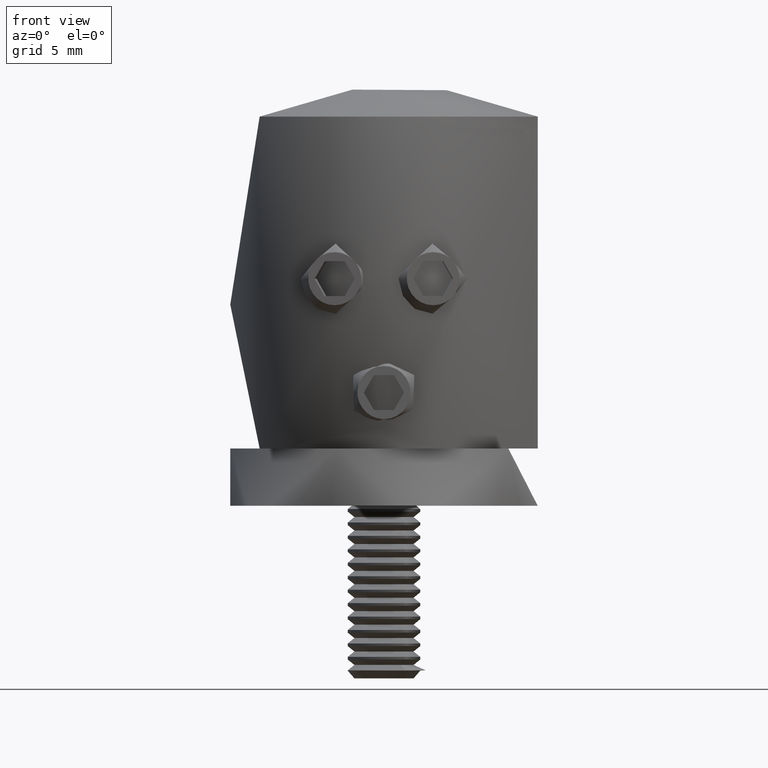
[diagram: clean part render]
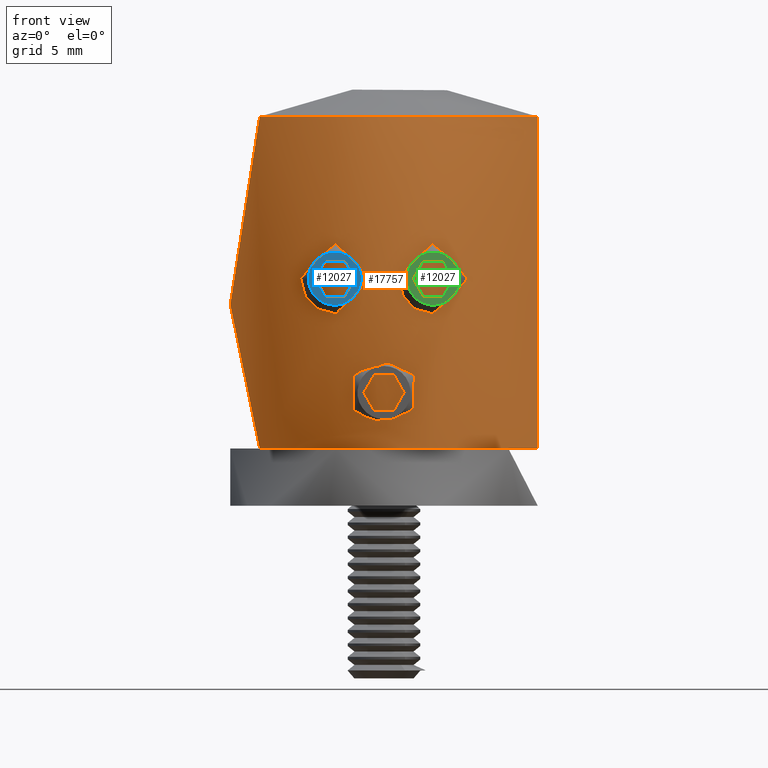
[diagram: same view with three faces highlighted in distinct colors, each labeled with its STEP entity id]
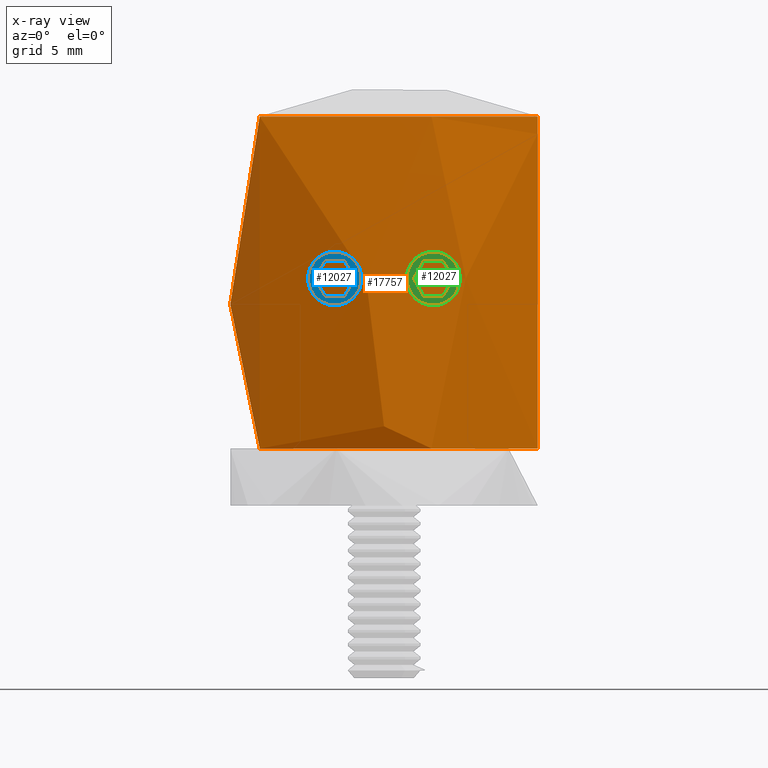
[diagram: x-ray of the same camera — body ghosted, the three highlighted faces saturated]
A machine part, front view with three faces highlighted in distinct colors.
The next image is the same camera in x-ray (body ghosted, the three faces saturated) — at least one of them is partly hidden behind the body in this view.
Their STEP definitions:

[orange] entity #17757 — the highlighted cylindrical surface (bore or boss wall) has radius 11 mm, axis along (0, 0, 1).
#6 = CARTESIAN_POINT ( 'NONE',  ( 10.56075521959791500, -3.096678220883586800, 21.67043277127626800 ) ) ;
#93 = CARTESIAN_POINT ( 'NONE',  ( -2.753301926233565400, -10.64985110238629100, 14.25785471381139800 ) ) ;
#97 = CARTESIAN_POINT ( 'NONE',  ( 9.884558394909735300, 4.832955114603749700, 20.14278198770373900 ) ) ;
#120 = ORIENTED_EDGE ( 'NONE', *, *, #16695, .T. ) ;
#170 = CARTESIAN_POINT ( 'NONE',  ( -10.97324043956128200, -0.7936138331961997100, 22.45163438274045800 ) ) ;
#194 = FACE_OUTER_BOUND ( 'NONE', #21039, .T. ) ;
#199 = CARTESIAN_POINT ( 'NONE',  ( 5.673721322420179900, -9.423846685696586800, 13.02549293670282900 ) ) ;
#467 = CARTESIAN_POINT ( 'NONE',  ( 10.88669551587767400, 1.625843207734908100, 10.50636876088165500 ) ) ;
#770 = CARTESIAN_POINT ( 'NONE',  ( -2.087678545343330000, -10.80007399471471700, 2.657151107508259000 ) ) ;
#951 = CARTESIAN_POINT ( 'NONE',  ( -2.177980241879993600, -10.78262365602483500, 5.213167996627087900 ) ) ;
#1031 = CARTESIAN_POINT ( 'NONE',  ( -2.382999229848468600, -10.73896813810681100, 3.220662270662221900 ) ) ;
#1121 = CARTESIAN_POINT ( 'NONE',  ( 2.256039582255863900, -10.76635616935171300, 2.926755654170211800 ) ) ;
#1183 = FACE_BOUND ( 'NONE', #15120, .T. ) ;
#1199 = CARTESIAN_POINT ( 'NONE',  ( 2.754512253586975900, -10.64953812354503700, 10.04167943430237000 ) ) ;
#1216 = CARTESIAN_POINT ( 'NONE',  ( 2.383584876163826700, -10.73884196754026400, 4.778017131766939800 ) ) ;
#1285 = CARTESIAN_POINT ( 'NONE',  ( 1.360531549438918500, -10.91558239197754300, 12.75118833010672100 ) ) ;
#1302 = CARTESIAN_POINT ( 'NONE',  ( 0.9623838866416614100, -10.95781991341035100, 1.769162574123964900 ) ) ;
#1371 = CARTESIAN_POINT ( 'NONE',  ( 1.282156153220556500, -10.92502062360793300, 12.00317585518097200 ) ) ;
#1398 = CARTESIAN_POINT ( 'NONE',  ( -4.742177440321203400, -9.926185626313431600, 10.19436772286568200 ) ) ;
#1478 = CARTESIAN_POINT ( 'NONE',  ( 3.187970294722303000, -10.52790793082691000, 9.921390849775974600 ) ) ;
#1483 = CARTESIAN_POINT ( 'NONE',  ( -9.153253516029341300, 6.100651666123667400, 16.58324285485192500 ) ) ;
#1495 = CARTESIAN_POINT ( 'NONE',  ( -2.020667218593132300E-015, -10.99999999999999800, 1.584844900694847100 ) ) ;
#1508 = CARTESIAN_POINT ( 'NONE',  ( -1.527190029316933400, -10.89364210904039400, 11.12788211107018600 ) ) ;
#1537 = DIRECTION ( 'NONE',  ( 1.000000000000000000, 0.0000000000000000000, 0.0000000000000000000 ) ) ;
#1577 = CARTESIAN_POINT ( 'NONE',  ( 3.631849595200657500, -10.38314347959426000, 9.886724001491202800 ) ) ;
#1599 = CARTESIAN_POINT ( 'NONE',  ( -3.633098961250465400, -10.38270638792028700, 9.886747519535207500 ) ) ;
#1687 = CARTESIAN_POINT ( 'NONE',  ( -2.347266312254069100, -10.74664323681386200, 10.24585284714411800 ) ) ;
#1695 = CARTESIAN_POINT ( 'NONE',  ( 11.00000000000000000, 0.0000000000000000000, 10.29999999999999900 ) ) ;
#1760 = CARTESIAN_POINT ( 'NONE',  ( -10.99999999999999800, 0.4119544153468474600, 10.29999999999999700 ) ) ;
#1785 = CARTESIAN_POINT ( 'NONE',  ( 9.823416292433384100, -4.951332716768896500, 12.83170122485886600 ) ) ;
#1859 = CARTESIAN_POINT ( 'NONE',  ( 5.847544478752919200, -9.316985755884912700, 12.44954029454594900 ) ) ;
#1878 = CARTESIAN_POINT ( 'NONE',  ( -4.210245126580717900, -10.16352846597259300, 14.33269670826544000 ) ) ;
#1882 = CARTESIAN_POINT ( 'NONE',  ( 9.655843362379474800, 5.275096090437347000, 19.48856493924066800 ) ) ;
#1941 = CARTESIAN_POINT ( 'NONE',  ( -9.884558394909735300, -4.832955114603747000, 20.14278198770373500 ) ) ;
#1966 = CARTESIAN_POINT ( 'NONE',  ( 10.65712405073123900, -2.750588877777293100, 21.85910216543438600 ) ) ;
#2056 = CARTESIAN_POINT ( 'NONE',  ( 10.56848592839725500, 3.070138311554854400, 21.68581601544172000 ) ) ;
#2061 = VERTEX_POINT ( 'NONE', #22880 ) ;
#2120 = CARTESIAN_POINT ( 'NONE',  ( -10.70011745089923100, -2.557856534737484600, 10.85862283480468400 ) ) ;
#2143 = CARTESIAN_POINT ( 'NONE',  ( -5.384240290188936100, -9.592630122477549600, 13.53707885892274700 ) ) ;
#2147 = CARTESIAN_POINT ( 'NONE',  ( 10.50807610336932500, 3.257306727324840600, 11.23869160819104400 ) ) ;
#2230 = CARTESIAN_POINT ( 'NONE',  ( -3.336884758183825900, -10.48279922661845600, 14.40472746973071800 ) ) ;
#2234 = CARTESIAN_POINT ( 'NONE',  ( 9.404246883826667500, -5.706848822141821200, 18.56371187619916800 ) ) ;
#2260 = DIRECTION ( 'NONE',  ( 1.000000000000000000, 0.0000000000000000000, 0.0000000000000000000 ) ) ;
#2300 = CARTESIAN_POINT ( 'NONE',  ( -9.154733802318572700, -6.098430320488778200, 16.82884321834455600 ) ) ;
#2688 = CARTESIAN_POINT ( 'NONE',  ( 11.00000000000000000, 0.4119544153468421300, 10.30000000000000100 ) ) ;
#2811 = CARTESIAN_POINT ( 'NONE',  ( -1.397269774137160900, -10.91089534265097100, 1.993051909358202400 ) ) ;
#2838 = CARTESIAN_POINT ( 'NONE',  ( 5.467084470818230500, -9.545207561333493000, 13.41310784844748800 ) ) ;
#2913 = CARTESIAN_POINT ( 'NONE',  ( -1.892899697423030100, -10.83654340792634900, 2.404725380980155000 ) ) ;
#3004 = CARTESIAN_POINT ( 'NONE',  ( -2.179285043678576000, -10.78236625296386300, 2.788823219965029600 ) ) ;
#3181 = CARTESIAN_POINT ( 'NONE',  ( 1.543890676010267700, -10.89363039259128000, 2.069276441871760900 ) ) ;
#3335 = CARTESIAN_POINT ( 'NONE',  ( 1.282485554755368600, -10.92498196013814200, 12.30271078121425500 ) ) ;
#3407 = CARTESIAN_POINT ( 'NONE',  ( 5.193391443391214500, -9.696838934194527600, 13.74888644280039800 ) ) ;
#3417 = VERTEX_POINT ( 'NONE', #22695 ) ;
#3427 = CARTESIAN_POINT ( 'NONE',  ( 3.489927570238195600, -10.43286345160808000, 14.41621972085257400 ) ) ;
#3444 = CARTESIAN_POINT ( 'NONE',  ( 0.3311095053121640400, -10.99992139316571600, 6.414830767918807900 ) ) ;
#3513 = EDGE_CURVE ( 'NONE', #4068, #4068, #18401, .T. ) ;
#3523 = CARTESIAN_POINT ( 'NONE',  ( 1.467256935775968400, -10.90170432017018400, 13.03433002751525100 ) ) ;
#3545 = CARTESIAN_POINT ( 'NONE',  ( -5.293055447504852600, -9.643499864571598600, 10.65133670993443200 ) ) ;
#3611 = CARTESIAN_POINT ( 'NONE',  ( 1.988647202245952700, -10.81874679919071300, 13.77572548807148500 ) ) ;
#3630 = CARTESIAN_POINT ( 'NONE',  ( -4.349161509504773100, -10.10474981273242400, 10.01138066265118100 ) ) ;
#3692 = CARTESIAN_POINT ( 'NONE',  ( 5.672619827117395100, -9.424509764279230600, 11.27185194951392000 ) ) ;
#3718 = CARTESIAN_POINT ( 'NONE',  ( -5.773158407178154800, -9.363325565606976000, 11.55117011655923100 ) ) ;
#3720 = CARTESIAN_POINT ( 'NONE',  ( 10.97695157601235900, -0.8154917404544900200, 10.34128971045530300 ) ) ;
#3796 = CARTESIAN_POINT ( 'NONE',  ( -9.541437754094056700, 5.476577152540516000, 19.11591475201606400 ) ) ;
#3821 = CARTESIAN_POINT ( 'NONE',  ( -2.614415102660436800, -10.68578014226144800, 10.09553121515492600 ) ) ;
#3840 = EDGE_LOOP ( 'NONE', ( #24095 ) ) ;
#3885 = CARTESIAN_POINT ( 'NONE',  ( -10.05928916644563000, 4.453430819430038500, 12.22689457929945800 ) ) ;
#3911 = CARTESIAN_POINT ( 'NONE',  ( 10.99999999999999600, 0.0000000000000000000, 23.74878637916747000 ) ) ;
#3973 = CARTESIAN_POINT ( 'NONE',  ( -9.818003290387908400, 4.962056561256334300, 19.95341231550813500 ) ) ;
#3989 = EDGE_CURVE ( 'NONE', #25035, #25035, #19979, .T. ) ;
#3993 = CARTESIAN_POINT ( 'NONE',  ( 9.287385638928912000, -5.895229317790466400, 14.78182133336428600 ) ) ;
#4054 = CARTESIAN_POINT ( 'NONE',  ( -10.65567692228154900, -2.736668129976454800, 10.94471346896226500 ) ) ;
#4068 = VERTEX_POINT ( 'NONE', #14237 ) ;
#4080 = CARTESIAN_POINT ( 'NONE',  ( -4.067891627060605600, -10.22018873164728500, 14.36315321034518900 ) ) ;
#4084 = CARTESIAN_POINT ( 'NONE',  ( 9.994595874194324400, -4.596398108278324700, 20.41514637220333500 ) ) ;
#4155 = CARTESIAN_POINT ( 'NONE',  ( -10.90835395832875500, 1.431035666601238300, 22.33324243480165100 ) ) ;
#4180 = CARTESIAN_POINT ( 'NONE',  ( 9.548936329887283100, 5.463500988949929700, 19.14152131049772300 ) ) ;
#4263 = CARTESIAN_POINT ( 'NONE',  ( 10.55980625606059000, 3.085983629272201600, 11.13443178477246100 ) ) ;
#4324 = CARTESIAN_POINT ( 'NONE',  ( -9.369915670549833200, -5.762779879413706400, 18.41008764505288700 ) ) ;
#4345 = CARTESIAN_POINT ( 'NONE',  ( 9.262708643723195600, 5.933349042232532800, 17.83071913368764400 ) ) ;
#4421 = CARTESIAN_POINT ( 'NONE',  ( -9.875328383823170200, -4.851642139667734300, 12.68169681171467300 ) ) ;
#4422 = ORIENTED_EDGE ( 'NONE', *, *, #20635, .F. ) ;
#4570 = B_SPLINE_CURVE_WITH_KNOTS ( 'NONE', 3,
 ( #20567, #24934, #3720, #12188, #18617, #12091, #12351, #25216, #5853, #14511, #26989, #27086, #1785, #22875, #17015, #21382, #3993, #18981, #8645, #12817, #8465, #23424, #16838, #6396, #27560, #21290, #2234, #14680, #8557, #10687, #25396, #4084, #12542, #14781, #6495, #6, #1966, #6128, #23517, #17115, #25580, #21016, #6216, #25666, #23322, #10787, #18895, #14596, #19259, #12719, #12898, #21115, #2056, #8366, #16933, #8278, #97, #1882, #4180, #25494, #23155, #12631, #4345, #10424, #23236, #16742, #10520, #19073, #25305, #6306, #14956, #21205, #10604, #27468, #14869, #2147, #4263, #19172, #23707, #6583, #467, #21567, #2688, #17580 ),
 .UNSPECIFIED., .T., .F.,
 ( 4, 2, 2, 2, 2, 2, 2, 2, 2, 2, 2, 2, 2, 2, 2, 2, 2, 2, 2, 2, 2, 2, 2, 2, 2, 2, 2, 2, 2, 2, 2, 2, 2, 2, 2, 2, 2, 2, 2, 2, 2, 4 ),
 ( 0.0000000000000000000, 0.001216736210685103400, 0.002433472421370206800, 0.003650208632055310300, 0.004866944842740413700, 0.005475312948082967600, 0.006083681053425521500, 0.007300417264110631800, 0.008517153474795743900, 0.009733889685480853400, 0.01034225779082340900, 0.01095062589616596600, 0.01155899400150852000, 0.01216736210685107800, 0.01338409831753618000, 0.01399246642287872400, 0.01460083452822126900, 0.01581757073890635600, 0.01703430694959143900, 0.01764267505493398100, 0.01825104316027652300, 0.01946777937096160300, 0.02007614747630414400, 0.02068451558164668600, 0.02129288368698922100, 0.02190125179233175900, 0.02311798800301683900, 0.02433472421370191600, 0.02555146042438699600, 0.02676819663507206900, 0.02737656474041461100, 0.02798493284575714900, 0.02920166905644223600, 0.03041840526712732300, 0.03163514147781240600, 0.03285187768849749000, 0.03406861389918258000, 0.03528535010986766400, 0.03589371821521020900, 0.03650208632055274700, 0.03771882253123783800, 0.03893555874192292800 ),
 .UNSPECIFIED. ) ;
#4729 = EDGE_CURVE ( 'NONE', #3417, #3417, #11919, .T. ) ;
#4752 = CARTESIAN_POINT ( 'NONE',  ( 5.847408648028886300, -9.317071004852323300, 11.84702165391507700 ) ) ;
#4842 = CARTESIAN_POINT ( 'NONE',  ( -1.661524859658452900, -10.87442308525437100, 2.181962713599229900 ) ) ;
#5015 = CARTESIAN_POINT ( 'NONE',  ( -2.495363705507605000, -10.71327480271960800, 4.317531738034352500 ) ) ;
#5211 = CARTESIAN_POINT ( 'NONE',  ( -1.115993498496286900, -10.94431255610769100, 1.830513048320795400 ) ) ;
#5374 = CARTESIAN_POINT ( 'NONE',  ( 0.3284569029660139900, -10.99628005263193000, 1.600367236529137300 ) ) ;
#5451 = CARTESIAN_POINT ( 'NONE',  ( 1.359436225987471000, -10.91571837052436900, 11.55256302524067100 ) ) ;
#5494 = CARTESIAN_POINT ( 'NONE',  ( 5.616999690705409200, -9.457996512411300600, 13.16245620615338500 ) ) ;
#5543 = CARTESIAN_POINT ( 'NONE',  ( 1.282320853987962500, -10.92500129187303800, 12.15294331819761300 ) ) ;
#5557 = CARTESIAN_POINT ( 'NONE',  ( 2.463499994663159100, -10.72059549541417000, 4.470953949805736900 ) ) ;
#5635 = CARTESIAN_POINT ( 'NONE',  ( 1.527845416882663600, -10.89354973566476500, 13.17330714616876000 ) ) ;
#5724 = CARTESIAN_POINT ( 'NONE',  ( 3.191726823003939300, -10.52676967959863500, 14.37926662916566300 ) ) ;
#5785 = DIRECTION ( 'NONE',  ( -0.0000000000000000000, -0.0000000000000000000, 1.000000000000000000 ) ) ;
#5824 = CARTESIAN_POINT ( 'NONE',  ( 1.877320584400411300, -10.83921029382861300, 13.67027739227517100 ) ) ;
#5853 = CARTESIAN_POINT ( 'NONE',  ( 10.23523940358924000, -4.040947010502999400, 11.81391594917569400 ) ) ;
#5917 = CARTESIAN_POINT ( 'NONE',  ( -9.647514933004703900, 5.290201444760914900, 19.46247388205959400 ) ) ;
#5937 = CARTESIAN_POINT ( 'NONE',  ( -3.928343048896012000, -10.27576737366478500, 9.906851510177565600 ) ) ;
#6002 = CARTESIAN_POINT ( 'NONE',  ( -9.882311817479486400, 4.833099761158372600, 12.67314814702374400 ) ) ;
#6022 = CARTESIAN_POINT ( 'NONE',  ( -5.464705314295977200, -9.546569846175390900, 13.41667514159514800 ) ) ;
#6098 = CARTESIAN_POINT ( 'NONE',  ( -10.97695157601235700, 0.8154917404544902400, 10.34128971045530000 ) ) ;
#6124 = CARTESIAN_POINT ( 'NONE',  ( -3.188991155148877400, -10.52759874864074300, 14.37878845237148800 ) ) ;
#6128 = CARTESIAN_POINT ( 'NONE',  ( 10.77884143829793800, -2.202631448935040000, 22.09190641235104000 ) ) ;
#6168 = CARTESIAN_POINT ( 'NONE',  ( 5.294704241020110800, -9.642578260186988700, 13.64662742966781300 ) ) ;
#6192 = CARTESIAN_POINT ( 'NONE',  ( -10.78664010805816500, -2.164383443384258600, 22.10666010265786600 ) ) ;
#6211 = CARTESIAN_POINT ( 'NONE',  ( -3.483483757282106000, -10.43502757870532300, 14.41598415133658400 ) ) ;
#6216 = CARTESIAN_POINT ( 'NONE',  ( 10.99905965626380100, -0.4319682143558784500, 22.49830428873475100 ) ) ;
#6282 = CARTESIAN_POINT ( 'NONE',  ( -10.66475748890669600, -2.721688767266841900, 21.87398493998483000 ) ) ;
#6306 = CARTESIAN_POINT ( 'NONE',  ( 9.542046598227907200, 5.475560630793905800, 13.68158294172838300 ) ) ;
#6371 = CARTESIAN_POINT ( 'NONE',  ( -11.00042874672051100, -0.1790107633385605900, 22.50077315433565400 ) ) ;
#6396 = CARTESIAN_POINT ( 'NONE',  ( 9.257007648696458100, -5.942224152987878800, 17.79307836241349600 ) ) ;
#6470 = CARTESIAN_POINT ( 'NONE',  ( -9.152699255644689600, -6.101483401673090300, 16.01703893293871100 ) ) ;
#6495 = CARTESIAN_POINT ( 'NONE',  ( 10.34600107115468700, -3.752229823401762600, 21.22572781584417700 ) ) ;
#6557 = CARTESIAN_POINT ( 'NONE',  ( -10.95673552425202300, -0.9948883876327715400, 22.42172331346569100 ) ) ;
#6583 = CARTESIAN_POINT ( 'NONE',  ( 10.82153467679176400, 2.008721309774863500, 10.62652596293656300 ) ) ;
#7078 = CARTESIAN_POINT ( 'NONE',  ( -0.3315329495189393000, -10.99999999999999600, 1.584844930053871600 ) ) ;
#7275 = CARTESIAN_POINT ( 'NONE',  ( -2.020667218593132300E-015, -10.99999999999999800, 1.584844900694847100 ) ) ;
#7359 = CARTESIAN_POINT ( 'NONE',  ( -1.996072047008083900, -10.81778173646557100, 2.525478995051488900 ) ) ;
#7487 = DIRECTION ( 'NONE',  ( -0.0000000000000000000, -0.0000000000000000000, 1.000000000000000000 ) ) ;
#7608 = CARTESIAN_POINT ( 'NONE',  ( 2.898603986856243000, -10.61223336305562300, 14.31355363986753000 ) ) ;
#7624 = CARTESIAN_POINT ( 'NONE',  ( 2.179889364258604400, -10.78223673683875500, 5.210013498370140700 ) ) ;
#7699 = CARTESIAN_POINT ( 'NONE',  ( 2.473729417275987200, -10.72223255056439800, 14.15069574582582100 ) ) ;
#7718 = CARTESIAN_POINT ( 'NONE',  ( 2.511631889561162000, -10.70942133164945500, 3.839907027314249300 ) ) ;
#7798 = CARTESIAN_POINT ( 'NONE',  ( 5.384125561004811500, -9.592698412784958600, 10.76269936889573800 ) ) ;
#7816 = CARTESIAN_POINT ( 'NONE',  ( 2.431469541523701300, -10.72795581613253500, 4.625850491968456000 ) ) ;
#7850 = CYLINDRICAL_SURFACE ( 'NONE', #22157, 10.99999999999999800 ) ;
#7889 = CARTESIAN_POINT ( 'NONE',  ( 3.783765426966021500, -10.32992514198941200, 14.41013601198380200 ) ) ;
#7974 = CARTESIAN_POINT ( 'NONE',  ( 5.290359304442595200, -9.644959230377898200, 10.64847557910667000 ) ) ;
#7978 = CARTESIAN_POINT ( 'NONE',  ( -10.82349510489187400, 1.998464203924864100, 10.62285073282916600 ) ) ;
#7998 = CARTESIAN_POINT ( 'NONE',  ( -1.282391820145597300, -10.92499296224104700, 11.84531756264802400 ) ) ;
#8034 = EDGE_LOOP ( 'NONE', ( #13964 ) ) ;
#8069 = CARTESIAN_POINT ( 'NONE',  ( -10.22984273932648100, 4.054541376369455100, 20.97407856064159400 ) ) ;
#8167 = CARTESIAN_POINT ( 'NONE',  ( -10.35109153156164300, 3.738197719850750100, 11.56340833636307500 ) ) ;
#8253 = CARTESIAN_POINT ( 'NONE',  ( -11.00000000000000000, -4.065758146820641600E-016, 10.29999999999999900 ) ) ;
#8278 = CARTESIAN_POINT ( 'NONE',  ( 10.00363043224886900, 4.584473309947980200, 20.44285449540664600 ) ) ;
#8339 = CARTESIAN_POINT ( 'NONE',  ( -9.996537732736378200, -4.599883052709786000, 12.37464005127819400 ) ) ;
#8361 = CARTESIAN_POINT ( 'NONE',  ( -4.347320099039778000, -10.10553974833917600, 14.28925830959905100 ) ) ;
#8366 = CARTESIAN_POINT ( 'NONE',  ( 10.35569616419129300, 3.725345759223082100, 21.24638000732665300 ) ) ;
#8437 = CARTESIAN_POINT ( 'NONE',  ( -10.23201466657478200, -4.049143934664148700, 11.82103939613444300 ) ) ;
#8465 = CARTESIAN_POINT ( 'NONE',  ( 9.159751136064910400, -6.090938158330283500, 16.79016624204473700 ) ) ;
#8531 = CARTESIAN_POINT ( 'NONE',  ( -9.542046598227903700, -5.475560630793906600, 13.68158294172838300 ) ) ;
#8557 = CARTESIAN_POINT ( 'NONE',  ( 9.647514933004712700, -5.290201444760914900, 19.46247388205958400 ) ) ;
#8645 = CARTESIAN_POINT ( 'NONE',  ( 9.154625459611539300, -6.098592904478554300, 15.97188860518444500 ) ) ;
#8711 = CARTESIAN_POINT ( 'NONE',  ( -10.82153467679176400, -2.008721309774860900, 10.62652596293656000 ) ) ;
#9042 = VERTEX_POINT ( 'NONE', #1695 ) ;
#9131 = CARTESIAN_POINT ( 'NONE',  ( -0.4903270790838651400, -10.98906635504204500, 6.368688208749404100 ) ) ;
#9240 = CARTESIAN_POINT ( 'NONE',  ( 5.847476950925000400, -9.317028137147639600, 12.14999999999999900 ) ) ;
#9320 = CARTESIAN_POINT ( 'NONE',  ( -0.8104466578491685800, -10.97117418873381900, 6.291497780559771200 ) ) ;
#9416 = CARTESIAN_POINT ( 'NONE',  ( -2.495562452211827600, -10.71322910456378900, 3.683362971071481300 ) ) ;
#9478 = ORIENTED_EDGE ( 'NONE', *, *, #4729, .T. ) ;
#9510 = CARTESIAN_POINT ( 'NONE',  ( -1.892943344172719700, -10.83654561251257500, 5.595331397847613400 ) ) ;
#9589 = CARTESIAN_POINT ( 'NONE',  ( 1.998357958369267700, -10.81735236367315700, 5.471525135721878800 ) ) ;
#9657 = CARTESIAN_POINT ( 'NONE',  ( 5.545751315520037700, -9.500174379542738000, 11.00464813719212600 ) ) ;
#9673 = CARTESIAN_POINT ( 'NONE',  ( 1.265772666319474600, -10.93117442413812100, 1.890181047744562000 ) ) ;
#9748 = CARTESIAN_POINT ( 'NONE',  ( 3.040114147432284600, -10.57268045434722700, 9.947393734827217700 ) ) ;
#9765 = CARTESIAN_POINT ( 'NONE',  ( 1.116343252776195600, -10.94426300031197400, 6.169244775404881600 ) ) ;
#9845 = CARTESIAN_POINT ( 'NONE',  ( 4.480064632006022200, -10.04634365792096100, 10.06723622649572100 ) ) ;
#9859 = CARTESIAN_POINT ( 'NONE',  ( 2.318934602487287200, -10.75279230290379400, 3.072080269349922100 ) ) ;
#9869 = CARTESIAN_POINT ( 'NONE',  ( -1.877536749602062100, -10.83916244883226900, 10.62961404178835600 ) ) ;
#9934 = CARTESIAN_POINT ( 'NONE',  ( 1.298220520602855900, -10.92316842921294800, 12.45438193986170500 ) ) ;
#9957 = CARTESIAN_POINT ( 'NONE',  ( -5.465425487857719300, -9.546157563997942600, 10.88440312906594100 ) ) ;
#10019 = CARTESIAN_POINT ( 'NONE',  ( 4.214515372006599300, -10.16176481817063500, 14.33152309609944400 ) ) ;
#10047 = CARTESIAN_POINT ( 'NONE',  ( -4.978897694836887500, -9.809586418798231100, 10.35495743885028700 ) ) ;
#10308 = CARTESIAN_POINT ( 'NONE',  ( -9.876850331807258200, 4.844238823729228600, 20.11236126726327100 ) ) ;
#10325 = CARTESIAN_POINT ( 'NONE',  ( -3.778742054825536400, -10.33177468485844700, 14.41059494452471600 ) ) ;
#10421 = CARTESIAN_POINT ( 'NONE',  ( -4.745557097002325100, -9.927949961306412200, 14.11977325473042900 ) ) ;
#10424 = CARTESIAN_POINT ( 'NONE',  ( 9.182846360408934300, 6.056809541581205100, 17.23151101186772000 ) ) ;
#10495 = CARTESIAN_POINT ( 'NONE',  ( 5.847476950925000400, -9.317028137147639600, 12.14999999999999900 ) ) ;
#10516 = CARTESIAN_POINT ( 'NONE',  ( -5.616326691185018500, -9.458395262482056900, 13.16374693878401600 ) ) ;
#10520 = CARTESIAN_POINT ( 'NONE',  ( 9.179891148193682700, 6.061232615172921000, 15.60271832034516300 ) ) ;
#10581 = CARTESIAN_POINT ( 'NONE',  ( -10.50807610336932300, -3.257306727324835700, 11.23869160819104400 ) ) ;
#10604 = CARTESIAN_POINT ( 'NONE',  ( 9.996537732736381800, 4.599883052709784300, 12.37464005127819500 ) ) ;
#10666 = CARTESIAN_POINT ( 'NONE',  ( -11.00000000000000000, -4.065758146820641600E-016, 10.29999999999999900 ) ) ;
#10687 = CARTESIAN_POINT ( 'NONE',  ( 9.818003290387908400, -4.962056561256334300, 19.95341231550813200 ) ) ;
#10759 = CARTESIAN_POINT ( 'NONE',  ( -9.282739979215671500, -5.902514784919359800, 14.80798300707638200 ) ) ;
#10787 = CARTESIAN_POINT ( 'NONE',  ( 10.97324043956128000, 0.7936138331961980500, 22.45163438274044800 ) ) ;
#11349 = CARTESIAN_POINT ( 'NONE',  ( 5.787164585849720500, -9.355547032267162800, 12.75156639780171700 ) ) ;
#11462 = CARTESIAN_POINT ( 'NONE',  ( -0.1616220107861330000, -11.00003883473656800, 6.415315291332948500 ) ) ;
#11558 = CARTESIAN_POINT ( 'NONE',  ( -2.511703974928243700, -10.70940442520010400, 3.842739291575714100 ) ) ;
#11641 = CARTESIAN_POINT ( 'NONE',  ( -1.776361239528236000, -10.85562254072522800, 5.707474951774919700 ) ) ;
#11715 = CARTESIAN_POINT ( 'NONE',  ( 2.320207892953276600, -10.75251762767572900, 4.924972162063986600 ) ) ;
#11793 = CARTESIAN_POINT ( 'NONE',  ( 4.485806426616502300, -10.04378119549236500, 14.23031073957186400 ) ) ;
#11810 = CARTESIAN_POINT ( 'NONE',  ( 1.774878405260975000, -10.85586508052390200, 2.291099913721534000 ) ) ;
#11834 = CARTESIAN_POINT ( 'NONE',  ( -1.282318885251840300, -10.92500152295305000, 12.14999999999999900 ) ) ;
#11880 = CARTESIAN_POINT ( 'NONE',  ( 2.613172333883406800, -10.68609581611611000, 10.09603274626676500 ) ) ;
#11897 = CARTESIAN_POINT ( 'NONE',  ( 2.495530447802617200, -10.71323517469580200, 4.316057407643017800 ) ) ;
#11919 = B_SPLINE_CURVE_WITH_KNOTS ( 'NONE', 3,
 ( #7275, #7078, #21972, #20021, #5211, #15731, #2811, #13495, #4842, #17887, #2913, #7359, #770, #3004, #15637, #15907, #1031, #24013, #22156, #9416, #11558, #13585, #20115, #5015, #22242, #19743, #26538, #22059, #13669, #951, #15546, #26342, #9510, #11641, #17694, #13763, #17797, #9320, #21881, #9131, #24213, #11462, #26160, #3444, #20466, #14024, #9765, #22414, #24561, #13855, #18325, #22676, #20368, #9589, #16263, #7624, #22502, #11715, #1216, #7816, #5557, #11897, #20204, #22323, #7718, #22589, #24640, #26625, #26799, #9859, #1121, #14124, #24735, #26705, #26978, #11810, #3181, #9673, #1302, #16171, #14217, #11982, #5374, #24482, #1495 ),
 .UNSPECIFIED., .T., .F.,
 ( 4, 3, 3, 3, 3, 3, 3, 3, 3, 3, 3, 3, 3, 3, 3, 3, 3, 3, 3, 3, 3, 3, 3, 3, 3, 3, 3, 3, 4 ),
 ( 0.0000000000000000000, 0.03571428571428571200, 0.07142857142857142500, 0.1071428571428571400, 0.1428571428571428500, 0.1785714285714285800, 0.2142857142857142700, 0.2500000000000000000, 0.2857142857142857000, 0.3214285714285714500, 0.3571428571428571500, 0.3928571428571428500, 0.4285714285714285500, 0.4642857142857143000, 0.5000000000000000000, 0.5357142857142857000, 0.5714285714285714000, 0.6071428571428571000, 0.6428571428571429000, 0.6785714285714286000, 0.7142857142857143000, 0.7500000000000000000, 0.7857142857142857000, 0.8214285714285714000, 0.8571428571428571000, 0.8928571428571429000, 0.9285714285714286000, 0.9642857142857143000, 1.000000000000000000 ),
 .UNSPECIFIED. ) ;
#11966 = CARTESIAN_POINT ( 'NONE',  ( 3.484545508913013700, -10.43466798055165900, 9.883988400145138800 ) ) ;
#11982 = CARTESIAN_POINT ( 'NONE',  ( 0.4897246382423631200, -10.98909321912860500, 1.631196561732932500 ) ) ;
#11990 = CARTESIAN_POINT ( 'NONE',  ( -1.987880630132486100, -10.81888767851593900, 10.52500090778472800 ) ) ;
#12058 = CARTESIAN_POINT ( 'NONE',  ( 3.335826442012321400, -10.48313540730659500, 9.895387964724731600 ) ) ;
#12088 = CARTESIAN_POINT ( 'NONE',  ( -3.339087569454367800, -10.48558635410838700, 9.881139194501930200 ) ) ;
#12091 = CARTESIAN_POINT ( 'NONE',  ( 10.66142031955350900, -2.734231561115276300, 10.93252429363031400 ) ) ;
#12160 = CARTESIAN_POINT ( 'NONE',  ( 1.406668454669272900, -10.90985890467560400, 12.89535290886174200 ) ) ;
#12165 = CARTESIAN_POINT ( 'NONE',  ( -9.257007648696456300, 5.942224152987877900, 17.79307836241349200 ) ) ;
#12184 = CARTESIAN_POINT ( 'NONE',  ( -5.672196222344394900, -9.424764719356231200, 11.27083338680511600 ) ) ;
#12188 = CARTESIAN_POINT ( 'NONE',  ( 10.88928147642777600, -1.606873239554576800, 10.50161415780659300 ) ) ;
#12207 = CARTESIAN_POINT ( 'NONE',  ( 0.0000000000000000000, 0.0000000000000000000, 25.99999999999999600 ) ) ;
#12247 = CARTESIAN_POINT ( 'NONE',  ( -9.287385638928908400, 5.895229317790464700, 14.78182133336428600 ) ) ;
#12268 = CARTESIAN_POINT ( 'NONE',  ( -2.098224510662910300, -10.79861290819960800, 10.42038777378109800 ) ) ;
#12348 = CARTESIAN_POINT ( 'NONE',  ( -4.211806406226703100, -10.16287169179809200, 9.967778377260172500 ) ) ;
#12351 = CARTESIAN_POINT ( 'NONE',  ( 10.56516037208888100, -3.081656113116340900, 11.12078256614181400 ) ) ;
#12422 = CARTESIAN_POINT ( 'NONE',  ( -10.05375444080991800, 4.465900659990700700, 20.55976037867541000 ) ) ;
#12449 = CARTESIAN_POINT ( 'NONE',  ( -5.672940335736933900, -9.424316842464969900, 13.02737645504959700 ) ) ;
#12521 = CARTESIAN_POINT ( 'NONE',  ( -10.66142031955350700, 2.734231561115276300, 10.93252429363031400 ) ) ;
#12537 = CARTESIAN_POINT ( 'NONE',  ( -3.925538127540493200, -10.27684899732197900, 14.39360971242493800 ) ) ;
#12542 = CARTESIAN_POINT ( 'NONE',  ( 10.05375444080991800, -4.465900659990699900, 20.55976037867541700 ) ) ;
#12627 = CARTESIAN_POINT ( 'NONE',  ( -3.631112906053821200, -10.38340113178188400, 14.41328954793064900 ) ) ;
#12631 = CARTESIAN_POINT ( 'NONE',  ( 9.295422111209905600, 5.882183215968437300, 18.02788356252803900 ) ) ;
#12719 = CARTESIAN_POINT ( 'NONE',  ( 10.82333026450579400, 1.973254160026633800, 22.17554688403684800 ) ) ;
#12791 = CARTESIAN_POINT ( 'NONE',  ( -9.548936329887277800, -5.463500988949925300, 19.14152131049772300 ) ) ;
#12812 = CARTESIAN_POINT ( 'NONE',  ( -5.847475272145141300, -9.317029190769700300, 12.44996167695632000 ) ) ;
#12817 = CARTESIAN_POINT ( 'NONE',  ( 9.153253516029341300, -6.100651666123665600, 16.58324285485192100 ) ) ;
#12876 = CARTESIAN_POINT ( 'NONE',  ( -10.97560464290936200, 0.8344455402437529500, 22.45628732122498400 ) ) ;
#12898 = CARTESIAN_POINT ( 'NONE',  ( 10.78664010805816500, 2.164383443384266100, 22.10666010265787000 ) ) ;
#12926 = DIRECTION ( 'NONE',  ( -0.0000000000000000000, -0.0000000000000000000, 1.000000000000000000 ) ) ;
#12962 = CARTESIAN_POINT ( 'NONE',  ( -9.411849063529519600, -5.694304542915048700, 18.59632450029122100 ) ) ;
#13142 = FACE_BOUND ( 'NONE', #20775, .T. ) ;
#13495 = CARTESIAN_POINT ( 'NONE',  ( -1.533328306870229700, -10.89347143110832900, 2.080631270009437800 ) ) ;
#13585 = CARTESIAN_POINT ( 'NONE',  ( -2.511716516407509900, -10.70940148379944100, 4.000337813666588400 ) ) ;
#13669 = CARTESIAN_POINT ( 'NONE',  ( -2.256864148927033100, -10.76618397735132300, 5.071739856433886500 ) ) ;
#13763 = CARTESIAN_POINT ( 'NONE',  ( -1.268443744210112200, -10.93091935414430800, 6.108644643610253100 ) ) ;
#13787 = CARTESIAN_POINT ( 'NONE',  ( 5.548538165988089700, -9.498554387047601500, 13.29072978312783900 ) ) ;
#13855 = CARTESIAN_POINT ( 'NONE',  ( 1.535022905085276800, -10.89323192799682400, 5.918116975765959100 ) ) ;
#13922 = CARTESIAN_POINT ( 'NONE',  ( 2.098869778576717400, -10.79849744731998800, 10.41974819371364400 ) ) ;
#13964 = ORIENTED_EDGE ( 'NONE', *, *, #3513, .T. ) ;
#14006 = CARTESIAN_POINT ( 'NONE',  ( 2.346983905069512500, -10.74670491589606200, 10.24603087601302100 ) ) ;
#14024 = CARTESIAN_POINT ( 'NONE',  ( 0.9648935137385287200, -10.95759921274479100, 6.229834885426770400 ) ) ;
#14108 = CARTESIAN_POINT ( 'NONE',  ( 1.587736309376489400, -10.88550082318080200, 10.98846054537103000 ) ) ;
#14124 = CARTESIAN_POINT ( 'NONE',  ( 2.178857699620390800, -10.78245327803794100, 2.788117446777010700 ) ) ;
#14137 = CARTESIAN_POINT ( 'NONE',  ( -4.482049221123339100, -10.04545841559396600, 10.06808195879265900 ) ) ;
#14202 = CARTESIAN_POINT ( 'NONE',  ( 1.603546657443236000, -10.88285185896867100, 13.30764728103373400 ) ) ;
#14217 = CARTESIAN_POINT ( 'NONE',  ( 0.6509923735187122000, -10.98190638562528300, 1.662025886936727500 ) ) ;
#14225 = CARTESIAN_POINT ( 'NONE',  ( -4.614936932741905200, -9.986167018455507400, 10.12478325493413900 ) ) ;
#14237 = CARTESIAN_POINT ( 'NONE',  ( 11.00000000000000000, 0.0000000000000000000, 0.0000000000000000000 ) ) ;
#14293 = CARTESIAN_POINT ( 'NONE',  ( 5.464938438262424600, -9.546436396163848300, 10.88367375304393300 ) ) ;
#14316 = CARTESIAN_POINT ( 'NONE',  ( -5.087979463248588600, -9.753255384224994300, 10.44509908970599300 ) ) ;
#14411 = CARTESIAN_POINT ( 'NONE',  ( -2.217823115885615400, -10.77491603302480500, 10.32744439910032800 ) ) ;
#14507 = CARTESIAN_POINT ( 'NONE',  ( -2.754922706603456300, -10.64943195107798400, 10.04152162696468600 ) ) ;
#14511 = CARTESIAN_POINT ( 'NONE',  ( 10.05928916644563000, -4.453430819430039400, 12.22689457929945400 ) ) ;
#14592 = CARTESIAN_POINT ( 'NONE',  ( -5.190107427956843500, -9.698597057629887900, 13.75219435882163500 ) ) ;
#14596 = CARTESIAN_POINT ( 'NONE',  ( 10.91341900764949600, 1.391812421171593000, 22.34254261676390000 ) ) ;
#14654 = CARTESIAN_POINT ( 'NONE',  ( -10.56848592839725500, -3.070138311554853100, 21.68581601544170900 ) ) ;
#14680 = CARTESIAN_POINT ( 'NONE',  ( 9.541437754094053100, -5.476577152540515100, 19.11591475201605700 ) ) ;
#14750 = CARTESIAN_POINT ( 'NONE',  ( -10.65712405073123900, 2.750588877777294900, 21.85910216543440000 ) ) ;
#14776 = CARTESIAN_POINT ( 'NONE',  ( -2.096899962168798900, -10.79886876335964300, 13.87849572818714500 ) ) ;
#14781 = CARTESIAN_POINT ( 'NONE',  ( 10.22984273932647900, -4.054541376369454200, 20.97407856064159400 ) ) ;
#14845 = CARTESIAN_POINT ( 'NONE',  ( 4.990765848133421800, -9.805360282209605300, 13.95340446906556400 ) ) ;
#14848 = CARTESIAN_POINT ( 'NONE',  ( -10.55980625606059700, -3.085983629272201200, 11.13443178477246500 ) ) ;
#14864 = CARTESIAN_POINT ( 'NONE',  ( -5.847477694911090000, -9.317027670213185800, 12.00083005102937900 ) ) ;
#14869 = CARTESIAN_POINT ( 'NONE',  ( 10.34725143670187500, 3.748763762359424300, 11.57160730895325100 ) ) ;
#14893 = CARTESIAN_POINT ( 'NONE',  ( 0.0000000000000000000, 0.0000000000000000000, 0.0000000000000000000 ) ) ;
#14956 = CARTESIAN_POINT ( 'NONE',  ( 9.648512081601326800, 5.288360497444990900, 13.33447340568118200 ) ) ;
#15020 = CARTESIAN_POINT ( 'NONE',  ( -10.00363043224887400, -4.584473309947978400, 20.44285449540665000 ) ) ;
#15120 = EDGE_LOOP ( 'NONE', ( #18750 ) ) ;
#15291 = EDGE_CURVE ( 'NONE', #16030, #16030, #17026, .T. ) ;
#15546 = CARTESIAN_POINT ( 'NONE',  ( -2.087083062809130600, -10.80018908579545200, 5.343704459521158700 ) ) ;
#15569 = CARTESIAN_POINT ( 'NONE',  ( 5.385630775648371200, -9.591860735619386300, 13.53548591376713800 ) ) ;
#15637 = CARTESIAN_POINT ( 'NONE',  ( -2.257482614945340400, -10.76605286276967800, 2.929546619533276000 ) ) ;
#15731 = CARTESIAN_POINT ( 'NONE',  ( -1.261211241404091900, -10.92831925419361200, 1.905472548706967000 ) ) ;
#15885 = EDGE_CURVE ( 'NONE', #2061, #2061, #26597, .T. ) ;
#15907 = CARTESIAN_POINT ( 'NONE',  ( -2.320240922396904300, -10.75251050043824500, 3.075104445097748900 ) ) ;
#16030 = VERTEX_POINT ( 'NONE', #27097 ) ;
#16038 = EDGE_LOOP ( 'NONE', ( #9478 ) ) ;
#16062 = CARTESIAN_POINT ( 'NONE',  ( 4.215941944069905700, -10.16412648051035100, 9.954823629621406800 ) ) ;
#16155 = CARTESIAN_POINT ( 'NONE',  ( 4.744187319942138700, -9.928560835331568400, 10.17964882337003700 ) ) ;
#16171 = CARTESIAN_POINT ( 'NONE',  ( 0.8106894968027548200, -10.97114265804646700, 1.708653337313666300 ) ) ;
#16248 = CARTESIAN_POINT ( 'NONE',  ( 1.466214130816209800, -10.90184462018216600, 11.26806563365645400 ) ) ;
#16263 = CARTESIAN_POINT ( 'NONE',  ( 2.089123661313935900, -10.79979455025595500, 5.340769317046009800 ) ) ;
#16271 = CARTESIAN_POINT ( 'NONE',  ( -5.190517455376720200, -9.698377624398295500, 10.54821789982021200 ) ) ;
#16334 = CARTESIAN_POINT ( 'NONE',  ( 1.778378226952213000, -10.85565278317050500, 13.55584042646952100 ) ) ;
#16338 = CARTESIAN_POINT ( 'NONE',  ( -9.404246883826671100, 5.706848822141821200, 18.56371187619917200 ) ) ;
#16436 = CARTESIAN_POINT ( 'NONE',  ( 2.475506280623929600, -10.71863678252605300, 10.16500159250519200 ) ) ;
#16464 = CARTESIAN_POINT ( 'NONE',  ( -5.384583013586703400, -9.592442000057182800, 10.76329256040887500 ) ) ;
#16540 = CARTESIAN_POINT ( 'NONE',  ( -9.288523322039354800, 5.893058497745284900, 17.98819897613592600 ) ) ;
#16555 = CARTESIAN_POINT ( 'NONE',  ( -2.476709508622522800, -10.71837044060291800, 10.16426129518790900 ) ) ;
#16695 = EDGE_CURVE ( 'NONE', #9042, #9042, #4570, .T. ) ;
#16717 = CARTESIAN_POINT ( 'NONE',  ( -9.653232611197095600, 5.279764526992451600, 13.31975750584613700 ) ) ;
#16738 = CARTESIAN_POINT ( 'NONE',  ( -2.218274567461858500, -10.77482766977582400, 13.97292208731342800 ) ) ;
#16742 = CARTESIAN_POINT ( 'NONE',  ( 9.152699255644691300, 6.101483401673093000, 16.01703893293871100 ) ) ;
#16814 = CARTESIAN_POINT ( 'NONE',  ( -9.295422111209902000, -5.882183215968435500, 18.02788356252802900 ) ) ;
#16838 = CARTESIAN_POINT ( 'NONE',  ( 9.205781148332759400, -6.021279925512389200, 17.39743835238008900 ) ) ;
#16905 = CARTESIAN_POINT ( 'NONE',  ( -10.35569616419129300, -3.725345759223079000, 21.24638000732666800 ) ) ;
#16933 = CARTESIAN_POINT ( 'NONE',  ( 10.23865757073148200, 4.032357685516512200, 20.99370868653107500 ) ) ;
#16992 = CARTESIAN_POINT ( 'NONE',  ( -9.357734529854720800, -5.784913307303538600, 14.42355532554420000 ) ) ;
#17012 = CARTESIAN_POINT ( 'NONE',  ( -1.766267142814256700, -10.85958214935765500, 13.56461438680817500 ) ) ;
#17015 = CARTESIAN_POINT ( 'NONE',  ( 9.547459403721244800, -5.466075739822142200, 13.66354435040356000 ) ) ;
#17026 = B_SPLINE_CURVE_WITH_KNOTS ( 'NONE', 3,
 ( #8253, #1760, #6098, #25282, #7978, #12521, #27058, #8167, #18680, #3885, #27167, #6002, #25000, #16717, #20908, #27437, #12247, #20724, #23034, #1483, #24912, #25194, #22855, #12165, #16540, #22761, #16338, #3796, #5917, #3973, #10308, #20826, #12422, #8069, #18871, #22939, #14750, #21353, #23495, #25469, #4155, #12876, #21183, #6371, #19232, #170, #6557, #21085, #19045, #23399, #6192, #6282, #14654, #16905, #21265, #15020, #1941, #19326, #12791, #12962, #4324, #16814, #17188, #23295, #2300, #6470, #27622, #10759, #16992, #8531, #23583, #4421, #8339, #8437, #21453, #10581, #14848, #4054, #2120, #8711, #19147, #18957, #25738, #10666 ),
 .UNSPECIFIED., .T., .F.,
 ( 4, 2, 2, 2, 2, 2, 2, 2, 2, 2, 2, 2, 2, 2, 2, 2, 2, 2, 2, 2, 2, 2, 2, 2, 2, 2, 2, 2, 2, 2, 2, 2, 2, 2, 2, 2, 2, 2, 2, 2, 2, 4 ),
 ( 0.0000000000000000000, 0.001216736210685104500, 0.002433472421370208600, 0.003650208632055312900, 0.004866944842740417200, 0.005475312948082970200, 0.006083681053425524100, 0.007300417264110637000, 0.008517153474795749100, 0.009733889685480860400, 0.01034225779082341600, 0.01095062589616597300, 0.01155899400150852900, 0.01216736210685108600, 0.01338409831753618700, 0.01399246642287873400, 0.01460083452822128100, 0.01581757073890636600, 0.01703430694959145000, 0.01764267505493399100, 0.01825104316027653000, 0.01946777937096160600, 0.02007614747630414800, 0.02068451558164668600, 0.02129288368698922800, 0.02190125179233176300, 0.02311798800301683900, 0.02433472421370190900, 0.02555146042438697800, 0.02676819663507204800, 0.02737656474041458300, 0.02798493284575711800, 0.02920166905644219400, 0.03041840526712729200, 0.03163514147781237900, 0.03285187768849747600, 0.03406861389918256600, 0.03528535010986765700, 0.03589371821521019500, 0.03650208632055274000, 0.03771882253123783100, 0.03893555874192292100 ),
 .UNSPECIFIED. ) ;
#17111 = CARTESIAN_POINT ( 'NONE',  ( -1.345296564868769600, -10.91810700628124700, 12.75371152971739300 ) ) ;
#17115 = CARTESIAN_POINT ( 'NONE',  ( 10.88034175087272500, -1.629824696895275900, 22.28170272155429300 ) ) ;
#17188 = CARTESIAN_POINT ( 'NONE',  ( -9.262708643723197400, -5.933349042232531900, 17.83071913368764400 ) ) ;
#17495 = FACE_BOUND ( 'NONE', #27349, .T. ) ;
#17580 = CARTESIAN_POINT ( 'NONE',  ( 11.00000000000000000, -3.252606517456513300E-016, 10.29999999999999700 ) ) ;
#17694 = CARTESIAN_POINT ( 'NONE',  ( -1.543197030239268600, -10.89377639715053700, 5.931762059629532400 ) ) ;
#17757 = ADVANCED_FACE ( 'NONE', ( #13142, #1183, #23132, #18829, #17495, #194, #19173 ), #7850, .T. ) ;
#17797 = CARTESIAN_POINT ( 'NONE',  ( -0.9631123533028165300, -10.95775591053731500, 6.230546734909931500 ) ) ;
#17887 = CARTESIAN_POINT ( 'NONE',  ( -1.777212278540741600, -10.85548324659036000, 2.293344047289692400 ) ) ;
#18219 = CARTESIAN_POINT ( 'NONE',  ( 1.690962442197724500, -10.86925232106958800, 13.43174385375162800 ) ) ;
#18308 = CARTESIAN_POINT ( 'NONE',  ( 4.749379275386970400, -9.926062902363197400, 14.11727947874616300 ) ) ;
#18325 = CARTESIAN_POINT ( 'NONE',  ( 1.660782927785467800, -10.87454360748031900, 5.818738680863162000 ) ) ;
#18401 = CIRCLE ( 'NONE', #19055, 11.00000000000000000 ) ;
#18404 = CARTESIAN_POINT ( 'NONE',  ( 5.786040126804620000, -9.356241996841404800, 11.54477391760361200 ) ) ;
#18431 = CARTESIAN_POINT ( 'NONE',  ( -5.546267962128735200, -9.499873127938704100, 11.00551369772300700 ) ) ;
#18505 = CARTESIAN_POINT ( 'NONE',  ( 3.926457767775944700, -10.28009447767945900, 9.892195204183330800 ) ) ;
#18590 = CARTESIAN_POINT ( 'NONE',  ( 1.297462502304604500, -10.92325800538665700, 11.85073903535987900 ) ) ;
#18614 = CARTESIAN_POINT ( 'NONE',  ( -1.601681103762812700, -10.88312585316970300, 10.99539881629933700 ) ) ;
#18617 = CARTESIAN_POINT ( 'NONE',  ( 10.82349510489187100, -1.998464203924863700, 10.62285073282916200 ) ) ;
#18680 = CARTESIAN_POINT ( 'NONE',  ( -10.23523940358924200, 4.040947010502997600, 11.81391594917569400 ) ) ;
#18699 = CARTESIAN_POINT ( 'NONE',  ( -3.035937914489495300, -10.57673556871105800, 9.933502450584205300 ) ) ;
#18750 = ORIENTED_EDGE ( 'NONE', *, *, #3989, .T. ) ;
#18800 = CARTESIAN_POINT ( 'NONE',  ( -1.466205703141277200, -10.90184575363621500, 13.03191497405564900 ) ) ;
#18829 = FACE_BOUND ( 'NONE', #3840, .T. ) ;
#18871 = CARTESIAN_POINT ( 'NONE',  ( -10.34600107115468500, 3.752229823401759500, 21.22572781584416600 ) ) ;
#18895 = CARTESIAN_POINT ( 'NONE',  ( 10.95673552425202500, 0.9948883876327665500, 22.42172331346568700 ) ) ;
#18957 = CARTESIAN_POINT ( 'NONE',  ( -10.97668327814536400, -0.8221493798894822200, 10.34175555824984000 ) ) ;
#18977 = CARTESIAN_POINT ( 'NONE',  ( -4.986491796049617300, -9.807559931056870200, 13.95687931042134300 ) ) ;
#18981 = CARTESIAN_POINT ( 'NONE',  ( 9.182824149353347600, -6.056814456260993600, 15.57100690659151700 ) ) ;
#19045 = CARTESIAN_POINT ( 'NONE',  ( -10.88660539605092800, -1.587461163400290900, 22.29327081037906300 ) ) ;
#19055 = AXIS2_PLACEMENT_3D ( 'NONE', #14893, #12926, #2260 ) ;
#19070 = CARTESIAN_POINT ( 'NONE',  ( -2.894177902049644800, -10.61343049031899700, 14.31211899046387300 ) ) ;
#19073 = CARTESIAN_POINT ( 'NONE',  ( 9.282739979215673300, 5.902514784919360700, 14.80798300707637900 ) ) ;
#19147 = CARTESIAN_POINT ( 'NONE',  ( -10.88669551587767300, -1.625843207734912500, 10.50636876088165600 ) ) ;
#19172 = CARTESIAN_POINT ( 'NONE',  ( 10.65567692228154900, 2.736668129976453000, 10.94471346896226500 ) ) ;
#19173 = FACE_OUTER_BOUND ( 'NONE', #8034, .T. ) ;
#19232 = CARTESIAN_POINT ( 'NONE',  ( -10.99515712557069400, -0.3851602843953686500, 22.49128501828072800 ) ) ;
#19259 = CARTESIAN_POINT ( 'NONE',  ( 10.88660539605092300, 1.587461163400291300, 22.29327081037905200 ) ) ;
#19326 = CARTESIAN_POINT ( 'NONE',  ( -9.655843362379471300, -5.275096090437347800, 19.48856493924067100 ) ) ;
#19743 = CARTESIAN_POINT ( 'NONE',  ( -2.430803093581094000, -10.72810763096586800, 4.628396887069898800 ) ) ;
#19979 = B_SPLINE_CURVE_WITH_KNOTS ( 'NONE', 3,
 ( #20478, #7998, #22787, #22958, #1508, #18614, #26986, #22597, #9869, #11990, #12268, #14411, #1687, #16555, #3821, #14507, #18699, #12088, #1599, #26901, #5937, #25126, #12348, #3630, #14137, #14225, #1398, #24840, #10047, #14316, #16271, #3545, #16464, #9957, #18431, #24931, #12184, #27081, #3718, #23232, #27359, #14864, #25576, #12812, #25489, #12449, #10516, #25302, #6022, #2143, #21110, #14592, #18977, #10421, #25393, #8361, #1878, #4080, #12537, #10325, #12627, #6211, #2230, #6124, #21286, #19070, #93, #20928, #21200, #27555, #16738, #14776, #23054, #17012, #21012, #18800, #17111, #27463, #23150 ),
 .UNSPECIFIED., .T., .F.,
 ( 4, 3, 3, 3, 3, 3, 3, 3, 3, 3, 3, 3, 3, 3, 3, 3, 3, 3, 3, 3, 3, 3, 3, 3, 3, 3, 4 ),
 ( 0.0000000000000000000, 0.03846153846153846400, 0.07692307692307692700, 0.1153846153846153900, 0.1538461538461538500, 0.1923076923076923200, 0.2307692307692307800, 0.2692307692307692200, 0.3076923076923077100, 0.3461538461538461500, 0.3846153846153846400, 0.4230769230769230700, 0.4615384615384615600, 0.5000000000000000000, 0.5384615384615384400, 0.5769230769230768700, 0.6153846153846154200, 0.6538461538461538500, 0.6923076923076922900, 0.7307692307692307300, 0.7692307692307692700, 0.8076923076923077100, 0.8461538461538461500, 0.8846153846153845800, 0.9230769230769231300, 0.9615384615384615600, 1.000000000000000000 ),
 .UNSPECIFIED. ) ;
#20021 = CARTESIAN_POINT ( 'NONE',  ( -0.9635496633443911800, -10.95771746515983500, 1.769627895335405900 ) ) ;
#20115 = CARTESIAN_POINT ( 'NONE',  ( -2.511729057886776100, -10.70939854239878000, 4.157936335757463000 ) ) ;
#20204 = CARTESIAN_POINT ( 'NONE',  ( 2.511799944583926100, -10.70938191707799400, 4.156688389902742000 ) ) ;
#20235 = CARTESIAN_POINT ( 'NONE',  ( 0.0000000000000000000, 0.0000000000000000000, 23.74878637916747000 ) ) ;
#20355 = CARTESIAN_POINT ( 'NONE',  ( 1.328449364146037800, -10.91948818795551200, 11.70165103030027400 ) ) ;
#20368 = CARTESIAN_POINT ( 'NONE',  ( 1.893470199382560000, -10.83645095076173300, 5.594738271604635200 ) ) ;
#20450 = CARTESIAN_POINT ( 'NONE',  ( 2.211300437937035100, -10.77781980991491300, 13.98662167966411500 ) ) ;
#20466 = CARTESIAN_POINT ( 'NONE',  ( 0.6619940356631945900, -10.98427163761042500, 6.351015105470548100 ) ) ;
#20478 = CARTESIAN_POINT ( 'NONE',  ( -1.282318885251840300, -10.92500152295305000, 12.14999999999999900 ) ) ;
#20538 = CARTESIAN_POINT ( 'NONE',  ( 2.756979130329491000, -10.64889975889188100, 14.25926767518696200 ) ) ;
#20567 = CARTESIAN_POINT ( 'NONE',  ( 11.00000000000000000, -3.252606517456513300E-016, 10.29999999999999700 ) ) ;
#20629 = CARTESIAN_POINT ( 'NONE',  ( 3.338718940266174300, -10.48220152643145100, 14.40487259295752800 ) ) ;
#20635 = EDGE_CURVE ( 'NONE', #23328, #23328, #25761, .T. ) ;
#20719 = CARTESIAN_POINT ( 'NONE',  ( 3.636846498602108300, -10.38139429679874600, 14.41317786641818800 ) ) ;
#20724 = CARTESIAN_POINT ( 'NONE',  ( -9.182824149353347600, 6.056814456260995300, 15.57100690659151900 ) ) ;
#20775 = EDGE_LOOP ( 'NONE', ( #27405 ) ) ;
#20826 = CARTESIAN_POINT ( 'NONE',  ( -9.994595874194320800, 4.596398108278324700, 20.41514637220333100 ) ) ;
#20908 = CARTESIAN_POINT ( 'NONE',  ( -9.547459403721239500, 5.466075739822138700, 13.66354435040355300 ) ) ;
#20928 = CARTESIAN_POINT ( 'NONE',  ( -2.612425950417486000, -10.68627171445358400, 14.20359043715892300 ) ) ;
#21012 = CARTESIAN_POINT ( 'NONE',  ( -1.587114841413784800, -10.88558450099118200, 13.31011841839390500 ) ) ;
#21016 = CARTESIAN_POINT ( 'NONE',  ( 10.97560464290936000, -0.8344455402437527300, 22.45628732122498800 ) ) ;
#21039 = EDGE_LOOP ( 'NONE', ( #4422 ) ) ;
#21085 = CARTESIAN_POINT ( 'NONE',  ( -10.91341900764949100, -1.391812421171590800, 22.34254261676389700 ) ) ;
#21110 = CARTESIAN_POINT ( 'NONE',  ( -5.291915243910457500, -9.644115620916396700, 13.64985188302178000 ) ) ;
#21115 = CARTESIAN_POINT ( 'NONE',  ( 10.66475748890669100, 2.721688767266843300, 21.87398493998483300 ) ) ;
#21183 = CARTESIAN_POINT ( 'NONE',  ( -10.99905965626380700, 0.4319682143558776800, 22.49830428873474400 ) ) ;
#21200 = CARTESIAN_POINT ( 'NONE',  ( -2.477881799429793900, -10.71810408412184600, 14.13639519296231500 ) ) ;
#21205 = CARTESIAN_POINT ( 'NONE',  ( 9.875328383823170200, 4.851642139667733400, 12.68169681171467100 ) ) ;
#21265 = CARTESIAN_POINT ( 'NONE',  ( -10.23865757073147800, -4.032357685516514000, 20.99370868653107500 ) ) ;
#21286 = CARTESIAN_POINT ( 'NONE',  ( -3.041097552113929400, -10.57239827066303100, 14.35284943501225800 ) ) ;
#21290 = CARTESIAN_POINT ( 'NONE',  ( 9.362046769079290300, -5.775541901457285300, 18.37322836746236700 ) ) ;
#21353 = CARTESIAN_POINT ( 'NONE',  ( -10.77884143829794400, 2.202631448935038700, 22.09190641235104700 ) ) ;
#21382 = CARTESIAN_POINT ( 'NONE',  ( 9.364778303763213100, -5.773464504138153200, 14.39169695136982900 ) ) ;
#21453 = CARTESIAN_POINT ( 'NONE',  ( -10.34725143670188000, -3.748763762359420800, 11.57160730895325400 ) ) ;
#21567 = CARTESIAN_POINT ( 'NONE',  ( 10.97668327814536400, 0.8221493798894867800, 10.34175555824983800 ) ) ;
#21881 = CARTESIAN_POINT ( 'NONE',  ( -0.6530340315527127800, -10.98180644576739700, 6.337544000683097400 ) ) ;
#21972 = CARTESIAN_POINT ( 'NONE',  ( -0.6586619930405998000, -10.98452728326412000, 1.647857589364626800 ) ) ;
#22059 = CARTESIAN_POINT ( 'NONE',  ( -2.319860156032100400, -10.75259265742242600, 4.925778238272567200 ) ) ;
#22156 = CARTESIAN_POINT ( 'NONE',  ( -2.463094693421274500, -10.72068862206341100, 3.527090071124106900 ) ) ;
#22157 = AXIS2_PLACEMENT_3D ( 'NONE', #12207, #5785, #1537 ) ;
#22242 = CARTESIAN_POINT ( 'NONE',  ( -2.463083399544349300, -10.72069121684273800, 4.472964312552125700 ) ) ;
#22323 = CARTESIAN_POINT ( 'NONE',  ( 2.511715917072544300, -10.70940162436372500, 3.998297708608496300 ) ) ;
#22354 = DIRECTION ( 'NONE',  ( 1.000000000000000000, 0.0000000000000000000, 0.0000000000000000000 ) ) ;
#22414 = CARTESIAN_POINT ( 'NONE',  ( 1.263044276341072700, -10.92810671215594800, 6.093506342078076600 ) ) ;
#22487 = CARTESIAN_POINT ( 'NONE',  ( 4.071792562094852700, -10.21863519905026200, 14.36231509824391800 ) ) ;
#22502 = CARTESIAN_POINT ( 'NONE',  ( 2.256830909742726800, -10.76619328781119300, 5.071927192361033400 ) ) ;
#22572 = CARTESIAN_POINT ( 'NONE',  ( 2.218461529515094900, -10.77477304926607400, 10.32706015952085300 ) ) ;
#22589 = CARTESIAN_POINT ( 'NONE',  ( 2.495297978060744700, -10.71329013739285200, 3.682043413930197400 ) ) ;
#22597 = CARTESIAN_POINT ( 'NONE',  ( -1.776341289298206400, -10.85598555258876600, 10.74666203585625200 ) ) ;
#22660 = CARTESIAN_POINT ( 'NONE',  ( 3.044734705741703800, -10.57133783276581900, 14.35366066537379700 ) ) ;
#22676 = CARTESIAN_POINT ( 'NONE',  ( 1.777126563584013900, -10.85549727912102600, 5.706738476233899100 ) ) ;
#22695 = CARTESIAN_POINT ( 'NONE',  ( -2.020667218593132300E-015, -10.99999999999999800, 1.584844900694847100 ) ) ;
#22758 = CARTESIAN_POINT ( 'NONE',  ( 1.765026059639900600, -10.85982913666639100, 10.73633720932484800 ) ) ;
#22761 = CARTESIAN_POINT ( 'NONE',  ( -9.362046769079290300, 5.775541901457289700, 18.37322836746236700 ) ) ;
#22787 = CARTESIAN_POINT ( 'NONE',  ( -1.345172046901324900, -10.91812728018170200, 11.54634040648865900 ) ) ;
#22855 = CARTESIAN_POINT ( 'NONE',  ( -9.205781148332759400, 6.021279925512387400, 17.39743835238009200 ) ) ;
#22875 = CARTESIAN_POINT ( 'NONE',  ( 9.653232611197095600, -5.279764526992450700, 13.31975750584613700 ) ) ;
#22880 = CARTESIAN_POINT ( 'NONE',  ( 5.847476950925000400, -9.317028137147639600, 12.14999999999999900 ) ) ;
#22939 = CARTESIAN_POINT ( 'NONE',  ( -10.56075521959791700, 3.096678220883588600, 21.67043277127627500 ) ) ;
#22958 = CARTESIAN_POINT ( 'NONE',  ( -1.466517368511730500, -10.90180383275416400, 11.26736820954301200 ) ) ;
#23034 = CARTESIAN_POINT ( 'NONE',  ( -9.154625459611534000, 6.098592904478553400, 15.97188860518444100 ) ) ;
#23054 = CARTESIAN_POINT ( 'NONE',  ( -1.986689022383951300, -10.81910655869231300, 13.77386861439415500 ) ) ;
#23132 = FACE_BOUND ( 'NONE', #16038, .T. ) ;
#23150 = CARTESIAN_POINT ( 'NONE',  ( -1.282318885251840300, -10.92500152295305000, 12.14999999999999900 ) ) ;
#23155 = CARTESIAN_POINT ( 'NONE',  ( 9.369915670549835000, 5.762779879413708200, 18.41008764505289400 ) ) ;
#23232 = CARTESIAN_POINT ( 'NONE',  ( -5.802875604673855200, -9.344872108096556200, 11.69963442019063700 ) ) ;
#23236 = CARTESIAN_POINT ( 'NONE',  ( 9.154733802318576300, 6.098430320488781800, 16.82884321834456300 ) ) ;
#23295 = CARTESIAN_POINT ( 'NONE',  ( -9.182846360408930800, -6.056809541581206000, 17.23151101186772000 ) ) ;
#23322 = CARTESIAN_POINT ( 'NONE',  ( 10.99515712557069600, 0.3851602843953721400, 22.49128501828072000 ) ) ;
#23328 = VERTEX_POINT ( 'NONE', #3911 ) ;
#23399 = CARTESIAN_POINT ( 'NONE',  ( -10.82333026450579500, -1.973254160026633800, 22.17554688403684400 ) ) ;
#23424 = CARTESIAN_POINT ( 'NONE',  ( 9.186070511604015100, -6.051171545997144500, 17.19691923427018000 ) ) ;
#23495 = CARTESIAN_POINT ( 'NONE',  ( -10.81560744150687700, 2.015142880694789500, 22.16107234963545000 ) ) ;
#23517 = CARTESIAN_POINT ( 'NONE',  ( 10.81560744150687200, -2.015142880694794400, 22.16107234963544000 ) ) ;
#23583 = CARTESIAN_POINT ( 'NONE',  ( -9.648512081601317900, -5.288360497444989200, 13.33447340568118400 ) ) ;
#23707 = CARTESIAN_POINT ( 'NONE',  ( 10.70011745089923500, 2.557856534737485100, 10.85862283480468100 ) ) ;
#24013 = CARTESIAN_POINT ( 'NONE',  ( -2.430626934630721900, -10.72814813956303400, 3.370817171176732100 ) ) ;
#24095 = ORIENTED_EDGE ( 'NONE', *, *, #15291, .T. ) ;
#24213 = CARTESIAN_POINT ( 'NONE',  ( -0.3276201266150175500, -10.99632626431669300, 6.399832416815710800 ) ) ;
#24482 = CARTESIAN_POINT ( 'NONE',  ( 0.1643935056628486900, -11.00000000000000000, 1.584844886136918000 ) ) ;
#24544 = CARTESIAN_POINT ( 'NONE',  ( 3.929069752183106200, -10.27550557992988600, 14.39310710038839500 ) ) ;
#24561 = CARTESIAN_POINT ( 'NONE',  ( 1.399033590713174800, -10.91066932007638700, 6.005811658922017800 ) ) ;
#24629 = CARTESIAN_POINT ( 'NONE',  ( 5.189286185150288900, -9.699036492797020500, 10.54698057382928200 ) ) ;
#24640 = CARTESIAN_POINT ( 'NONE',  ( 2.463009590041774600, -10.72070817434008000, 3.526680430776609800 ) ) ;
#24715 = CARTESIAN_POINT ( 'NONE',  ( 4.987139946565676500, -9.807191017635261700, 10.34399056327450800 ) ) ;
#24735 = CARTESIAN_POINT ( 'NONE',  ( 2.087175410688430600, -10.80017123961548500, 2.656428170776617300 ) ) ;
#24816 = CARTESIAN_POINT ( 'NONE',  ( 1.329376035020887200, -10.91937541059524500, 12.60278513498421300 ) ) ;
#24840 = CARTESIAN_POINT ( 'NONE',  ( -4.860537567579045000, -9.867886022555831400, 10.27466258085798300 ) ) ;
#24906 = CARTESIAN_POINT ( 'NONE',  ( 4.354020002231268700, -10.10264034205694900, 14.28682636998471600 ) ) ;
#24912 = CARTESIAN_POINT ( 'NONE',  ( -9.159751136064912200, 6.090938158330279100, 16.79016624204474800 ) ) ;
#24931 = CARTESIAN_POINT ( 'NONE',  ( -5.614627605015893900, -9.459411790499098400, 11.13251968643668900 ) ) ;
#24934 = CARTESIAN_POINT ( 'NONE',  ( 10.99999999999999800, -0.4119544153468471200, 10.29999999999999500 ) ) ;
#25000 = CARTESIAN_POINT ( 'NONE',  ( -9.823416292433384100, 4.951332716768895600, 12.83170122485886300 ) ) ;
#25035 = VERTEX_POINT ( 'NONE', #11834 ) ;
#25126 = CARTESIAN_POINT ( 'NONE',  ( -4.070074727561357800, -10.21931953273143800, 9.937314943718869000 ) ) ;
#25194 = CARTESIAN_POINT ( 'NONE',  ( -9.186070511604013300, 6.051171545997140900, 17.19691923427018000 ) ) ;
#25216 = CARTESIAN_POINT ( 'NONE',  ( 10.35109153156164300, -3.738197719850753700, 11.56340833636307900 ) ) ;
#25282 = CARTESIAN_POINT ( 'NONE',  ( -10.88928147642778100, 1.606873239554576800, 10.50161415780659800 ) ) ;
#25302 = CARTESIAN_POINT ( 'NONE',  ( -5.545170338403018200, -9.500509569873232300, 13.29627142426755000 ) ) ;
#25305 = CARTESIAN_POINT ( 'NONE',  ( 9.357734529854720800, 5.784913307303538600, 14.42355532554420200 ) ) ;
#25393 = CARTESIAN_POINT ( 'NONE',  ( -4.480065765027294600, -10.04634315266158700, 14.23276329130951000 ) ) ;
#25396 = CARTESIAN_POINT ( 'NONE',  ( 9.876850331807260000, -4.844238823729229500, 20.11236126726327800 ) ) ;
#25469 = CARTESIAN_POINT ( 'NONE',  ( -10.88034175087272000, 1.629824696895270100, 22.28170272155429300 ) ) ;
#25489 = CARTESIAN_POINT ( 'NONE',  ( -5.786167624840762100, -9.356160002430796000, 12.75463548758075700 ) ) ;
#25494 = CARTESIAN_POINT ( 'NONE',  ( 9.411849063529519600, 5.694304542915046100, 18.59632450029122500 ) ) ;
#25576 = CARTESIAN_POINT ( 'NONE',  ( -5.847476887322439900, -9.317028177065356700, 12.15054059300502600 ) ) ;
#25580 = CARTESIAN_POINT ( 'NONE',  ( 10.90835395832875700, -1.431035666601241800, 22.33324243480163700 ) ) ;
#25666 = CARTESIAN_POINT ( 'NONE',  ( 11.00042874672050700, 0.1790107633385608100, 22.50077315433566100 ) ) ;
#25738 = CARTESIAN_POINT ( 'NONE',  ( -11.00000000000000000, -0.4119544153468410200, 10.30000000000000100 ) ) ;
#25761 = CIRCLE ( 'NONE', #27180, 10.99999999999999600 ) ;
#26160 = CARTESIAN_POINT ( 'NONE',  ( 0.002621827913299337800, -10.99999968754628400, 6.415153783528235300 ) ) ;
#26342 = CARTESIAN_POINT ( 'NONE',  ( -1.996185883738268000, -10.81775451556606900, 5.474240922415229500 ) ) ;
#26538 = CARTESIAN_POINT ( 'NONE',  ( -2.382856163137168100, -10.73900133749352800, 4.779816620111248000 ) ) ;
#26597 = B_SPLINE_CURVE_WITH_KNOTS ( 'NONE', 3,
 ( #9240, #4752, #18404, #3692, #26688, #9657, #14293, #7798, #7974, #24629, #24715, #16155, #9845, #16062, #18505, #1577, #11966, #12058, #1478, #9748, #26965, #1199, #11880, #16436, #14006, #22572, #13922, #26876, #22758, #14108, #16248, #27052, #5451, #20355, #18590, #1371, #5543, #3335, #9934, #24816, #1285, #12160, #3523, #5635, #14202, #18219, #16334, #5824, #3611, #20450, #7699, #20538, #7608, #22660, #5724, #20629, #3427, #20719, #7889, #24544, #22487, #10019, #24906, #11793, #18308, #14845, #3407, #6168, #15569, #2838, #13787, #5494, #199, #11349, #1859, #10495 ),
 .UNSPECIFIED., .T., .F.,
 ( 4, 3, 3, 3, 3, 3, 3, 3, 3, 3, 3, 3, 3, 3, 3, 3, 3, 3, 3, 3, 3, 3, 3, 3, 3, 4 ),
 ( 0.0000000000000000000, 0.04000000000000000100, 0.08000000000000000200, 0.1200000000000000000, 0.1600000000000000000, 0.2000000000000000100, 0.2399999999999999900, 0.2800000000000000300, 0.3200000000000000100, 0.3599999999999999900, 0.4000000000000000200, 0.4400000000000000000, 0.4799999999999999800, 0.5200000000000000200, 0.5600000000000000500, 0.5999999999999999800, 0.6400000000000000100, 0.6800000000000000500, 0.7199999999999999700, 0.7600000000000000100, 0.8000000000000000400, 0.8399999999999999700, 0.8800000000000000000, 0.9200000000000000400, 0.9599999999999999600, 1.000000000000000000 ),
 .UNSPECIFIED. ) ;
#26625 = CARTESIAN_POINT ( 'NONE',  ( 2.430721202022804000, -10.72812621128730700, 3.371317447623022100 ) ) ;
#26688 = CARTESIAN_POINT ( 'NONE',  ( 5.615909677273783100, -9.458643647998144400, 11.13539096546907500 ) ) ;
#26705 = CARTESIAN_POINT ( 'NONE',  ( 1.995493121756470000, -10.81788920119303100, 2.524738894776223900 ) ) ;
#26799 = CARTESIAN_POINT ( 'NONE',  ( 2.381829622718711000, -10.73922843645587700, 3.217404884529632800 ) ) ;
#26876 = CARTESIAN_POINT ( 'NONE',  ( 1.987588538931111600, -10.81894134376879000, 10.52527786558404400 ) ) ;
#26901 = CARTESIAN_POINT ( 'NONE',  ( -3.780104657148514800, -10.33126640482623800, 9.889551682051845200 ) ) ;
#26965 = CARTESIAN_POINT ( 'NONE',  ( 2.895852173290545100, -10.61298043097396400, 9.987326122337973900 ) ) ;
#26978 = CARTESIAN_POINT ( 'NONE',  ( 1.890372269886328600, -10.83698242449021300, 2.402011649646420100 ) ) ;
#26986 = CARTESIAN_POINT ( 'NONE',  ( -1.689011196530509500, -10.86955570287923600, 10.87103042607779500 ) ) ;
#26989 = CARTESIAN_POINT ( 'NONE',  ( 10.00013541345771500, -4.584346395257771400, 12.37109864061816600 ) ) ;
#27052 = CARTESIAN_POINT ( 'NONE',  ( 1.405453041536070000, -10.91001651868284700, 11.40786817779916400 ) ) ;
#27058 = CARTESIAN_POINT ( 'NONE',  ( -10.56516037208888300, 3.081656113116340500, 11.12078256614181100 ) ) ;
#27081 = CARTESIAN_POINT ( 'NONE',  ( -5.729764839672895100, -9.390117648213365700, 11.40914708717354000 ) ) ;
#27086 = CARTESIAN_POINT ( 'NONE',  ( 9.882311817479491700, -4.833099761158375300, 12.67314814702374700 ) ) ;
#27097 = CARTESIAN_POINT ( 'NONE',  ( -10.99999999999999800, 0.0000000000000000000, 10.29999999999999900 ) ) ;
#27167 = CARTESIAN_POINT ( 'NONE',  ( -10.00013541345771500, 4.584346395257770500, 12.37109864061816600 ) ) ;
#27180 = AXIS2_PLACEMENT_3D ( 'NONE', #20235, #7487, #22354 ) ;
#27349 = EDGE_LOOP ( 'NONE', ( #120 ) ) ;
#27359 = CARTESIAN_POINT ( 'NONE',  ( -5.832592802169555700, -9.326418650586136400, 11.84809872382204600 ) ) ;
#27405 = ORIENTED_EDGE ( 'NONE', *, *, #15885, .T. ) ;
#27437 = CARTESIAN_POINT ( 'NONE',  ( -9.364778303763213100, 5.773464504138154000, 14.39169695136983200 ) ) ;
#27463 = CARTESIAN_POINT ( 'NONE',  ( -1.282246918476069000, -10.92500997003248400, 12.45063816533545000 ) ) ;
#27468 = CARTESIAN_POINT ( 'NONE',  ( 10.23201466657478100, 4.049143934664146900, 11.82103939613443400 ) ) ;
#27555 = CARTESIAN_POINT ( 'NONE',  ( -2.348078183445826200, -10.74646587694883400, 14.05465864013787100 ) ) ;
#27560 = CARTESIAN_POINT ( 'NONE',  ( 9.288523322039353000, -5.893058497745282200, 17.98819897613592300 ) ) ;
#27622 = CARTESIAN_POINT ( 'NONE',  ( -9.179891148193682700, -6.061232615172923700, 15.60271832034517000 ) ) ;

[blue] entity #12027 — the highlighted planar face has unit normal (-0.0872, -0.9962, 0).
#193 = AXIS2_PLACEMENT_3D ( 'NONE', #9884, #9790, #1415 ) ;
#711 = CARTESIAN_POINT ( 'NONE',  ( 5.000000000000000000, 1.443375672974066100, 3.510950658916429000E-016 ) ) ;
#975 = VECTOR ( 'NONE', #8450, 1000.000000000000200 ) ;
#993 = EDGE_LOOP ( 'NONE', ( #10161, #17418, #14768, #20035, #19126, #20698 ) ) ;
#1171 = VERTEX_POINT ( 'NONE', #20401 ) ;
#1415 = DIRECTION ( 'NONE',  ( 0.0000000000000000000, 0.0000000000000000000, -1.000000000000000000 ) ) ;
#1710 = LINE ( 'NONE', #25835, #22985 ) ;
#2031 = DIRECTION ( 'NONE',  ( 0.0000000000000000000, 0.4999999999999995000, -0.8660254037844389300 ) ) ;
#2212 = CARTESIAN_POINT ( 'NONE',  ( 5.000000000000000000, -1.443375672974063900, 4.248569400808785300E-016 ) ) ;
#2343 = DIRECTION ( 'NONE',  ( 0.0000000000000000000, 1.000000000000000000, 3.004629197474313600E-016 ) ) ;
#4212 = DIRECTION ( 'NONE',  ( 0.0000000000000000000, -0.4999999999999998900, -0.8660254037844386000 ) ) ;
#4554 = CARTESIAN_POINT ( 'NONE',  ( 5.000000000000000000, -0.7216878364870327200, -1.249999999999999300 ) ) ;
#5082 = LINE ( 'NONE', #13005, #11735 ) ;
#5518 = VERTEX_POINT ( 'NONE', #711 ) ;
#5531 = VECTOR ( 'NONE', #2031, 1000.000000000000000 ) ;
#5878 = EDGE_CURVE ( 'NONE', #24688, #24252, #7160, .T. ) ;
#7160 = LINE ( 'NONE', #8404, #9161 ) ;
#8172 = EDGE_CURVE ( 'NONE', #1171, #24562, #15751, .T. ) ;
#8215 = EDGE_CURVE ( 'NONE', #24562, #5518, #5082, .T. ) ;
#8404 = CARTESIAN_POINT ( 'NONE',  ( 5.000000000000000000, -0.7216878364870317200, 1.250000000000000400 ) ) ;
#8450 = DIRECTION ( 'NONE',  ( 0.0000000000000000000, -0.4999999999999998900, 0.8660254037844386000 ) ) ;
#9161 = VECTOR ( 'NONE', #4212, 1000.000000000000200 ) ;
#9538 = FACE_BOUND ( 'NONE', #993, .T. ) ;
#9767 = CARTESIAN_POINT ( 'NONE',  ( 5.000000000000000000, 0.7216878364870338300, 1.250000000000000400 ) ) ;
#9790 = DIRECTION ( 'NONE',  ( 1.000000000000000000, 0.0000000000000000000, 0.0000000000000000000 ) ) ;
#9884 = CARTESIAN_POINT ( 'NONE',  ( 5.000000000000000000, 0.0000000000000000000, 0.0000000000000000000 ) ) ;
#10161 = ORIENTED_EDGE ( 'NONE', *, *, #5878, .F. ) ;
#10448 = ORIENTED_EDGE ( 'NONE', *, *, #18646, .T. ) ;
#10636 = CARTESIAN_POINT ( 'NONE',  ( 5.000000000000000000, 0.0000000000000000000, 0.0000000000000000000 ) ) ;
#11049 = VERTEX_POINT ( 'NONE', #16652 ) ;
#11275 = LINE ( 'NONE', #16827, #975 ) ;
#11548 = EDGE_CURVE ( 'NONE', #21371, #24688, #1710, .T. ) ;
#11735 = VECTOR ( 'NONE', #19193, 1000.000000000000200 ) ;
#12027 = ADVANCED_FACE ( 'NONE', ( #9538, #23152 ), #16103, .T. ) ;
#12385 = VECTOR ( 'NONE', #2343, 1000.000000000000000 ) ;
#13005 = CARTESIAN_POINT ( 'NONE',  ( 5.000000000000000000, 0.7216878364870340500, -1.249999999999998900 ) ) ;
#14768 = ORIENTED_EDGE ( 'NONE', *, *, #21852, .F. ) ;
#15353 = EDGE_CURVE ( 'NONE', #24252, #1171, #22839, .T. ) ;
#15751 = LINE ( 'NONE', #4554, #12385 ) ;
#16103 = PLANE ( 'NONE',  #193 ) ;
#16652 = CARTESIAN_POINT ( 'NONE',  ( 5.000000000000000000, 0.0000000000000000000, -1.900000000000000100 ) ) ;
#16827 = CARTESIAN_POINT ( 'NONE',  ( 5.000000000000000000, 1.443375672974066100, 3.510950658916429000E-016 ) ) ;
#17063 = EDGE_LOOP ( 'NONE', ( #10448 ) ) ;
#17418 = ORIENTED_EDGE ( 'NONE', *, *, #11548, .F. ) ;
#18007 = CARTESIAN_POINT ( 'NONE',  ( 5.000000000000000000, -0.7216878364870317200, 1.250000000000000400 ) ) ;
#18646 = EDGE_CURVE ( 'NONE', #11049, #11049, #21819, .T. ) ;
#18839 = DIRECTION ( 'NONE',  ( 1.000000000000000000, 0.0000000000000000000, 0.0000000000000000000 ) ) ;
#19126 = ORIENTED_EDGE ( 'NONE', *, *, #8172, .F. ) ;
#19193 = DIRECTION ( 'NONE',  ( 0.0000000000000000000, 0.5000000000000000000, 0.8660254037844386000 ) ) ;
#20035 = ORIENTED_EDGE ( 'NONE', *, *, #8215, .F. ) ;
#20401 = CARTESIAN_POINT ( 'NONE',  ( 5.000000000000000000, -0.7216878364870327200, -1.249999999999999300 ) ) ;
#20698 = ORIENTED_EDGE ( 'NONE', *, *, #15353, .F. ) ;
#20898 = CARTESIAN_POINT ( 'NONE',  ( 5.000000000000000000, -1.443375672974064100, 5.421010862427522200E-016 ) ) ;
#21371 = VERTEX_POINT ( 'NONE', #9767 ) ;
#21819 = CIRCLE ( 'NONE', #24484, 1.900000000000000100 ) ;
#21829 = CARTESIAN_POINT ( 'NONE',  ( 5.000000000000000000, 0.7216878364870340500, -1.249999999999998900 ) ) ;
#21852 = EDGE_CURVE ( 'NONE', #5518, #21371, #11275, .T. ) ;
#22839 = LINE ( 'NONE', #2212, #5531 ) ;
#22985 = VECTOR ( 'NONE', #23876, 1000.000000000000000 ) ;
#23152 = FACE_OUTER_BOUND ( 'NONE', #17063, .T. ) ;
#23876 = DIRECTION ( 'NONE',  ( 0.0000000000000000000, -1.000000000000000000, 0.0000000000000000000 ) ) ;
#24252 = VERTEX_POINT ( 'NONE', #20898 ) ;
#24484 = AXIS2_PLACEMENT_3D ( 'NONE', #10636, #18839, #27310 ) ;
#24562 = VERTEX_POINT ( 'NONE', #21829 ) ;
#24688 = VERTEX_POINT ( 'NONE', #18007 ) ;
#25835 = CARTESIAN_POINT ( 'NONE',  ( 5.000000000000000000, 0.7216878364870338300, 1.250000000000000400 ) ) ;
#27310 = DIRECTION ( 'NONE',  ( 0.0000000000000000000, 0.0000000000000000000, -1.000000000000000000 ) ) ;

[green] entity #12027 — the highlighted planar face has unit normal (0.0872, -0.9962, 0).
#193 = AXIS2_PLACEMENT_3D ( 'NONE', #9884, #9790, #1415 ) ;
#711 = CARTESIAN_POINT ( 'NONE',  ( 5.000000000000000000, 1.443375672974066100, 3.510950658916429000E-016 ) ) ;
#975 = VECTOR ( 'NONE', #8450, 1000.000000000000200 ) ;
#993 = EDGE_LOOP ( 'NONE', ( #10161, #17418, #14768, #20035, #19126, #20698 ) ) ;
#1171 = VERTEX_POINT ( 'NONE', #20401 ) ;
#1415 = DIRECTION ( 'NONE',  ( 0.0000000000000000000, 0.0000000000000000000, -1.000000000000000000 ) ) ;
#1710 = LINE ( 'NONE', #25835, #22985 ) ;
#2031 = DIRECTION ( 'NONE',  ( 0.0000000000000000000, 0.4999999999999995000, -0.8660254037844389300 ) ) ;
#2212 = CARTESIAN_POINT ( 'NONE',  ( 5.000000000000000000, -1.443375672974063900, 4.248569400808785300E-016 ) ) ;
#2343 = DIRECTION ( 'NONE',  ( 0.0000000000000000000, 1.000000000000000000, 3.004629197474313600E-016 ) ) ;
#4212 = DIRECTION ( 'NONE',  ( 0.0000000000000000000, -0.4999999999999998900, -0.8660254037844386000 ) ) ;
#4554 = CARTESIAN_POINT ( 'NONE',  ( 5.000000000000000000, -0.7216878364870327200, -1.249999999999999300 ) ) ;
#5082 = LINE ( 'NONE', #13005, #11735 ) ;
#5518 = VERTEX_POINT ( 'NONE', #711 ) ;
#5531 = VECTOR ( 'NONE', #2031, 1000.000000000000000 ) ;
#5878 = EDGE_CURVE ( 'NONE', #24688, #24252, #7160, .T. ) ;
#7160 = LINE ( 'NONE', #8404, #9161 ) ;
#8172 = EDGE_CURVE ( 'NONE', #1171, #24562, #15751, .T. ) ;
#8215 = EDGE_CURVE ( 'NONE', #24562, #5518, #5082, .T. ) ;
#8404 = CARTESIAN_POINT ( 'NONE',  ( 5.000000000000000000, -0.7216878364870317200, 1.250000000000000400 ) ) ;
#8450 = DIRECTION ( 'NONE',  ( 0.0000000000000000000, -0.4999999999999998900, 0.8660254037844386000 ) ) ;
#9161 = VECTOR ( 'NONE', #4212, 1000.000000000000200 ) ;
#9538 = FACE_BOUND ( 'NONE', #993, .T. ) ;
#9767 = CARTESIAN_POINT ( 'NONE',  ( 5.000000000000000000, 0.7216878364870338300, 1.250000000000000400 ) ) ;
#9790 = DIRECTION ( 'NONE',  ( 1.000000000000000000, 0.0000000000000000000, 0.0000000000000000000 ) ) ;
#9884 = CARTESIAN_POINT ( 'NONE',  ( 5.000000000000000000, 0.0000000000000000000, 0.0000000000000000000 ) ) ;
#10161 = ORIENTED_EDGE ( 'NONE', *, *, #5878, .F. ) ;
#10448 = ORIENTED_EDGE ( 'NONE', *, *, #18646, .T. ) ;
#10636 = CARTESIAN_POINT ( 'NONE',  ( 5.000000000000000000, 0.0000000000000000000, 0.0000000000000000000 ) ) ;
#11049 = VERTEX_POINT ( 'NONE', #16652 ) ;
#11275 = LINE ( 'NONE', #16827, #975 ) ;
#11548 = EDGE_CURVE ( 'NONE', #21371, #24688, #1710, .T. ) ;
#11735 = VECTOR ( 'NONE', #19193, 1000.000000000000200 ) ;
#12027 = ADVANCED_FACE ( 'NONE', ( #9538, #23152 ), #16103, .T. ) ;
#12385 = VECTOR ( 'NONE', #2343, 1000.000000000000000 ) ;
#13005 = CARTESIAN_POINT ( 'NONE',  ( 5.000000000000000000, 0.7216878364870340500, -1.249999999999998900 ) ) ;
#14768 = ORIENTED_EDGE ( 'NONE', *, *, #21852, .F. ) ;
#15353 = EDGE_CURVE ( 'NONE', #24252, #1171, #22839, .T. ) ;
#15751 = LINE ( 'NONE', #4554, #12385 ) ;
#16103 = PLANE ( 'NONE',  #193 ) ;
#16652 = CARTESIAN_POINT ( 'NONE',  ( 5.000000000000000000, 0.0000000000000000000, -1.900000000000000100 ) ) ;
#16827 = CARTESIAN_POINT ( 'NONE',  ( 5.000000000000000000, 1.443375672974066100, 3.510950658916429000E-016 ) ) ;
#17063 = EDGE_LOOP ( 'NONE', ( #10448 ) ) ;
#17418 = ORIENTED_EDGE ( 'NONE', *, *, #11548, .F. ) ;
#18007 = CARTESIAN_POINT ( 'NONE',  ( 5.000000000000000000, -0.7216878364870317200, 1.250000000000000400 ) ) ;
#18646 = EDGE_CURVE ( 'NONE', #11049, #11049, #21819, .T. ) ;
#18839 = DIRECTION ( 'NONE',  ( 1.000000000000000000, 0.0000000000000000000, 0.0000000000000000000 ) ) ;
#19126 = ORIENTED_EDGE ( 'NONE', *, *, #8172, .F. ) ;
#19193 = DIRECTION ( 'NONE',  ( 0.0000000000000000000, 0.5000000000000000000, 0.8660254037844386000 ) ) ;
#20035 = ORIENTED_EDGE ( 'NONE', *, *, #8215, .F. ) ;
#20401 = CARTESIAN_POINT ( 'NONE',  ( 5.000000000000000000, -0.7216878364870327200, -1.249999999999999300 ) ) ;
#20698 = ORIENTED_EDGE ( 'NONE', *, *, #15353, .F. ) ;
#20898 = CARTESIAN_POINT ( 'NONE',  ( 5.000000000000000000, -1.443375672974064100, 5.421010862427522200E-016 ) ) ;
#21371 = VERTEX_POINT ( 'NONE', #9767 ) ;
#21819 = CIRCLE ( 'NONE', #24484, 1.900000000000000100 ) ;
#21829 = CARTESIAN_POINT ( 'NONE',  ( 5.000000000000000000, 0.7216878364870340500, -1.249999999999998900 ) ) ;
#21852 = EDGE_CURVE ( 'NONE', #5518, #21371, #11275, .T. ) ;
#22839 = LINE ( 'NONE', #2212, #5531 ) ;
#22985 = VECTOR ( 'NONE', #23876, 1000.000000000000000 ) ;
#23152 = FACE_OUTER_BOUND ( 'NONE', #17063, .T. ) ;
#23876 = DIRECTION ( 'NONE',  ( 0.0000000000000000000, -1.000000000000000000, 0.0000000000000000000 ) ) ;
#24252 = VERTEX_POINT ( 'NONE', #20898 ) ;
#24484 = AXIS2_PLACEMENT_3D ( 'NONE', #10636, #18839, #27310 ) ;
#24562 = VERTEX_POINT ( 'NONE', #21829 ) ;
#24688 = VERTEX_POINT ( 'NONE', #18007 ) ;
#25835 = CARTESIAN_POINT ( 'NONE',  ( 5.000000000000000000, 0.7216878364870338300, 1.250000000000000400 ) ) ;
#27310 = DIRECTION ( 'NONE',  ( 0.0000000000000000000, 0.0000000000000000000, -1.000000000000000000 ) ) ;